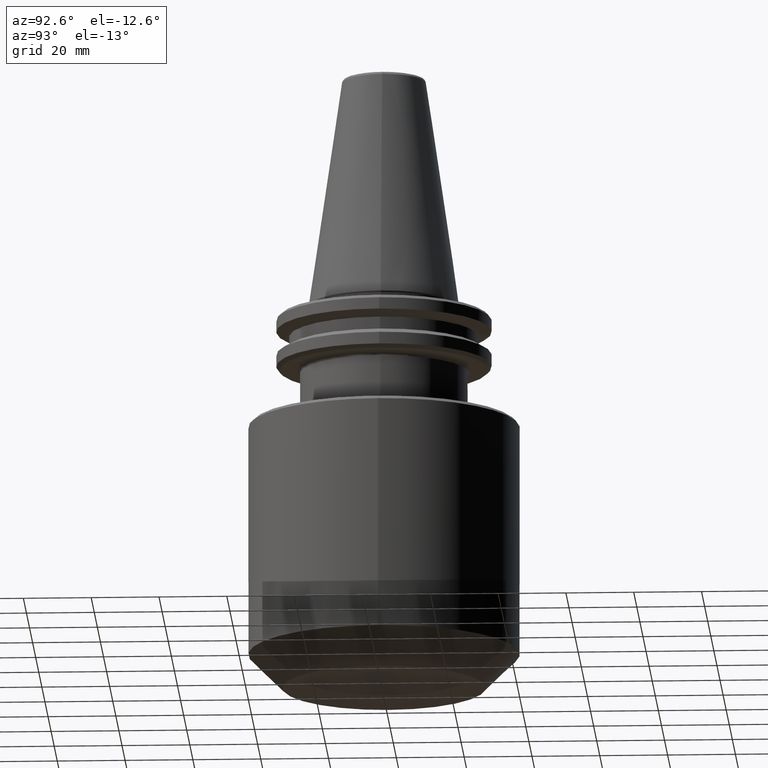
[diagram: clean part render]
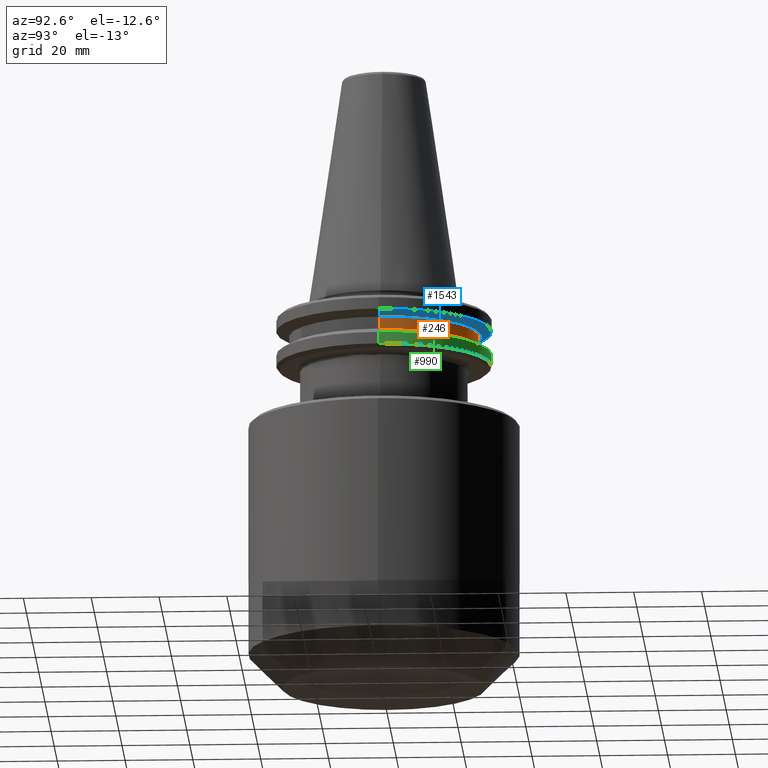
[diagram: same view with three faces highlighted in distinct colors, each labeled with its STEP entity id]
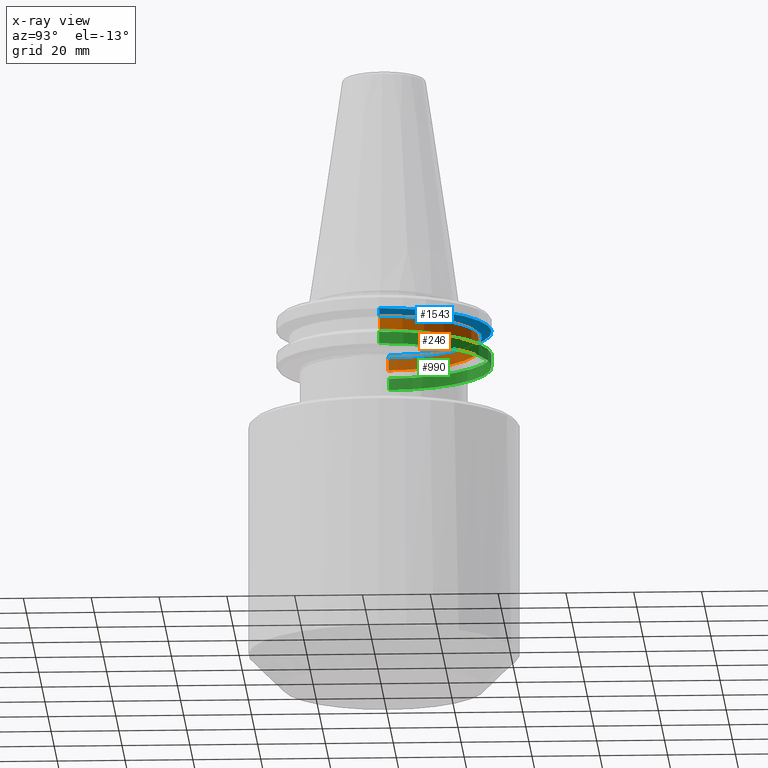
[diagram: x-ray of the same camera — body ghosted, the three highlighted faces saturated]
A machine part, auxiliary view with three faces highlighted in distinct colors.
The next image is the same camera in x-ray (body ghosted, the three faces saturated) — at least one of them is partly hidden behind the body in this view.
Their STEP definitions:

[orange] entity #246 — the highlighted cylindrical surface (partial cylindrical patch) has radius 28 mm, axis along (0, 0, 1).
#33 = VERTEX_POINT ( 'NONE', #1106 ) ;
#75 = CIRCLE ( 'NONE', #342, 28.00000000000000000 ) ;
#153 = ORIENTED_EDGE ( 'NONE', *, *, #1945, .F. ) ;
#175 = VERTEX_POINT ( 'NONE', #1271 ) ;
#176 = DIRECTION ( 'NONE',  ( 0.0000000000000000000, 0.0000000000000000000, 1.000000000000000000 ) ) ;
#179 = CIRCLE ( 'NONE', #319, 28.00000000000000000 ) ;
#219 = CARTESIAN_POINT ( 'NONE',  ( 0.0000000000000000000, 0.0000000000000000000, -13.00000000000001100 ) ) ;
#237 = VERTEX_POINT ( 'NONE', #1134 ) ;
#246 = ADVANCED_FACE ( 'NONE', ( #1968 ), #1190, .T. ) ;
#253 = AXIS2_PLACEMENT_3D ( 'NONE', #1480, #1328, #1296 ) ;
#264 = LINE ( 'NONE', #560, #1828 ) ;
#267 = DIRECTION ( 'NONE',  ( 1.000000000000000000, 0.0000000000000000000, 0.0000000000000000000 ) ) ;
#319 = AXIS2_PLACEMENT_3D ( 'NONE', #428, #1560, #1160 ) ;
#342 = AXIS2_PLACEMENT_3D ( 'NONE', #219, #1117, #267 ) ;
#391 = VECTOR ( 'NONE', #176, 1000.000000000000000 ) ;
#428 = CARTESIAN_POINT ( 'NONE',  ( 0.0000000000000000000, 0.0000000000000000000, -9.199999999999999300 ) ) ;
#538 = EDGE_CURVE ( 'NONE', #175, #237, #264, .T. ) ;
#548 = DIRECTION ( 'NONE',  ( 0.0000000000000000000, 0.0000000000000000000, 1.000000000000000000 ) ) ;
#560 = CARTESIAN_POINT ( 'NONE',  ( -28.00000000000000000, 3.429011037612589300E-015, 113.5216080541959500 ) ) ;
#679 = CARTESIAN_POINT ( 'NONE',  ( 28.00000000000000000, 0.0000000000000000000, 113.5216080541959500 ) ) ;
#942 = CARTESIAN_POINT ( 'NONE',  ( 28.00000000000000000, 0.0000000000000000000, -9.199999999999999300 ) ) ;
#1106 = CARTESIAN_POINT ( 'NONE',  ( 28.00000000000000000, 0.0000000000000000000, -13.00000000000001100 ) ) ;
#1117 = DIRECTION ( 'NONE',  ( 0.0000000000000000000, 0.0000000000000000000, 1.000000000000000000 ) ) ;
#1134 = CARTESIAN_POINT ( 'NONE',  ( -28.00000000000000000, 3.429011037612589300E-015, -9.199999999999999300 ) ) ;
#1144 = EDGE_CURVE ( 'NONE', #33, #175, #75, .T. ) ;
#1156 = EDGE_CURVE ( 'NONE', #237, #1255, #179, .T. ) ;
#1160 = DIRECTION ( 'NONE',  ( 1.000000000000000000, 0.0000000000000000000, 0.0000000000000000000 ) ) ;
#1190 = CYLINDRICAL_SURFACE ( 'NONE', #253, 28.00000000000000000 ) ;
#1255 = VERTEX_POINT ( 'NONE', #942 ) ;
#1271 = CARTESIAN_POINT ( 'NONE',  ( -28.00000000000000000, 3.429011037612589300E-015, -13.00000000000001100 ) ) ;
#1296 = DIRECTION ( 'NONE',  ( 1.000000000000000000, 0.0000000000000000000, 0.0000000000000000000 ) ) ;
#1328 = DIRECTION ( 'NONE',  ( 0.0000000000000000000, 0.0000000000000000000, 1.000000000000000000 ) ) ;
#1347 = ORIENTED_EDGE ( 'NONE', *, *, #538, .T. ) ;
#1480 = CARTESIAN_POINT ( 'NONE',  ( 0.0000000000000000000, 0.0000000000000000000, 113.5216080541959500 ) ) ;
#1560 = DIRECTION ( 'NONE',  ( -0.0000000000000000000, -0.0000000000000000000, -1.000000000000000000 ) ) ;
#1755 = EDGE_LOOP ( 'NONE', ( #1764, #1347, #1885, #153 ) ) ;
#1764 = ORIENTED_EDGE ( 'NONE', *, *, #1144, .T. ) ;
#1828 = VECTOR ( 'NONE', #548, 1000.000000000000000 ) ;
#1885 = ORIENTED_EDGE ( 'NONE', *, *, #1156, .T. ) ;
#1945 = EDGE_CURVE ( 'NONE', #33, #1255, #1963, .T. ) ;
#1963 = LINE ( 'NONE', #679, #391 ) ;
#1968 = FACE_OUTER_BOUND ( 'NONE', #1755, .T. ) ;

[blue] entity #1543 — the highlighted conical surface has half-angle 60 deg.
#18 = AXIS2_PLACEMENT_3D ( 'NONE', #413, #1473, #1714 ) ;
#170 = VECTOR ( 'NONE', #1937, 1000.000000000000000 ) ;
#171 = AXIS2_PLACEMENT_3D ( 'NONE', #1836, #1882, #1798 ) ;
#406 = VERTEX_POINT ( 'NONE', #663 ) ;
#413 = CARTESIAN_POINT ( 'NONE',  ( 0.0000000000000000000, 0.0000000000000000000, -9.199999999999999300 ) ) ;
#474 = ORIENTED_EDGE ( 'NONE', *, *, #1754, .F. ) ;
#530 = DIRECTION ( 'NONE',  ( -0.8660254037844390400, 1.060575238724907400E-016, 0.4999999999999993300 ) ) ;
#610 = LINE ( 'NONE', #1006, #977 ) ;
#633 = EDGE_LOOP ( 'NONE', ( #1693, #1621, #868, #474 ) ) ;
#657 = CIRCLE ( 'NONE', #738, 31.75000000000000000 ) ;
#663 = CARTESIAN_POINT ( 'NONE',  ( -28.94089653438086500, 3.716245608910637900E-015, -9.199999999999999300 ) ) ;
#738 = AXIS2_PLACEMENT_3D ( 'NONE', #1934, #1861, #1864 ) ;
#868 = ORIENTED_EDGE ( 'NONE', *, *, #1569, .T. ) ;
#977 = VECTOR ( 'NONE', #530, 1000.000000000000000 ) ;
#988 = CARTESIAN_POINT ( 'NONE',  ( 31.75000000000000000, 0.0000000000000000000, -7.578163357943284800 ) ) ;
#1006 = CARTESIAN_POINT ( 'NONE',  ( -31.75000000000000000, 3.888253587292846500E-015, -7.578163357943284800 ) ) ;
#1046 = FACE_OUTER_BOUND ( 'NONE', #633, .T. ) ;
#1364 = LINE ( 'NONE', #1825, #170 ) ;
#1416 = VERTEX_POINT ( 'NONE', #988 ) ;
#1473 = DIRECTION ( 'NONE',  ( 0.0000000000000000000, -0.0000000000000000000, 1.000000000000000000 ) ) ;
#1543 = ADVANCED_FACE ( 'NONE', ( #1046 ), #1837, .T. ) ;
#1569 = EDGE_CURVE ( 'NONE', #1697, #1416, #657, .T. ) ;
#1620 = VERTEX_POINT ( 'NONE', #1794 ) ;
#1621 = ORIENTED_EDGE ( 'NONE', *, *, #1974, .T. ) ;
#1693 = ORIENTED_EDGE ( 'NONE', *, *, #1961, .T. ) ;
#1697 = VERTEX_POINT ( 'NONE', #1976 ) ;
#1714 = DIRECTION ( 'NONE',  ( 1.000000000000000000, 0.0000000000000000000, 0.0000000000000000000 ) ) ;
#1754 = EDGE_CURVE ( 'NONE', #1620, #1416, #1364, .T. ) ;
#1794 = CARTESIAN_POINT ( 'NONE',  ( 28.94089653438086500, 0.0000000000000000000, -9.199999999999999300 ) ) ;
#1798 = DIRECTION ( 'NONE',  ( 1.000000000000000000, 0.0000000000000000000, 0.0000000000000000000 ) ) ;
#1825 = CARTESIAN_POINT ( 'NONE',  ( 31.75000000000000000, 0.0000000000000000000, -7.578163357943284800 ) ) ;
#1826 = CIRCLE ( 'NONE', #18, 28.94089653438086500 ) ;
#1836 = CARTESIAN_POINT ( 'NONE',  ( 0.0000000000000000000, 0.0000000000000000000, -7.578163357943284800 ) ) ;
#1837 = CONICAL_SURFACE ( 'NONE', #171, 31.75000000000000000, 1.047197551196598500 ) ;
#1861 = DIRECTION ( 'NONE',  ( -0.0000000000000000000, -0.0000000000000000000, -1.000000000000000000 ) ) ;
#1864 = DIRECTION ( 'NONE',  ( 1.000000000000000000, 0.0000000000000000000, -5.463695987328526400E-017 ) ) ;
#1882 = DIRECTION ( 'NONE',  ( 0.0000000000000000000, -0.0000000000000000000, 1.000000000000000000 ) ) ;
#1934 = CARTESIAN_POINT ( 'NONE',  ( 0.0000000000000000000, 0.0000000000000000000, -7.578163357943284800 ) ) ;
#1937 = DIRECTION ( 'NONE',  ( 0.8660254037844390400, 0.0000000000000000000, 0.4999999999999993300 ) ) ;
#1961 = EDGE_CURVE ( 'NONE', #1620, #406, #1826, .T. ) ;
#1974 = EDGE_CURVE ( 'NONE', #406, #1697, #610, .T. ) ;
#1976 = CARTESIAN_POINT ( 'NONE',  ( -31.75000000000000000, 3.888253587292846500E-015, -7.578163357943284800 ) ) ;

[green] entity #990 — the highlighted cylindrical surface (partial cylindrical patch) has radius 31.75 mm, axis along (0, 0, 1).
#11 = AXIS2_PLACEMENT_3D ( 'NONE', #15, #31, #25 ) ;
#15 = CARTESIAN_POINT ( 'NONE',  ( 0.0000000000000000000, 0.0000000000000000000, 113.5216080541959500 ) ) ;
#25 = DIRECTION ( 'NONE',  ( 1.000000000000000000, 0.0000000000000000000, 0.0000000000000000000 ) ) ;
#31 = DIRECTION ( 'NONE',  ( 0.0000000000000000000, 0.0000000000000000000, 1.000000000000000000 ) ) ;
#71 = VERTEX_POINT ( 'NONE', #1099 ) ;
#87 = CIRCLE ( 'NONE', #527, 31.75000000000005700 ) ;
#191 = EDGE_LOOP ( 'NONE', ( #321, #1520, #645, #1090 ) ) ;
#321 = ORIENTED_EDGE ( 'NONE', *, *, #437, .T. ) ;
#346 = CYLINDRICAL_SURFACE ( 'NONE', #11, 31.75000000000000000 ) ;
#365 = VECTOR ( 'NONE', #604, 1000.000000000000000 ) ;
#415 = LINE ( 'NONE', #603, #365 ) ;
#437 = EDGE_CURVE ( 'NONE', #71, #1496, #87, .T. ) ;
#459 = CARTESIAN_POINT ( 'NONE',  ( -31.74999999999924300, 3.888253587292755000E-015, -18.10000000000078300 ) ) ;
#464 = EDGE_CURVE ( 'NONE', #1496, #1870, #415, .T. ) ;
#493 = DIRECTION ( 'NONE',  ( -1.000000000000000000, 0.0000000000000000000, -5.463695987328526400E-017 ) ) ;
#496 = DIRECTION ( 'NONE',  ( -0.0000000000000000000, -0.0000000000000000000, 1.000000000000000000 ) ) ;
#498 = CARTESIAN_POINT ( 'NONE',  ( 0.0000000000000000000, 0.0000000000000000000, -14.62183664205671200 ) ) ;
#499 = AXIS2_PLACEMENT_3D ( 'NONE', #498, #496, #493 ) ;
#527 = AXIS2_PLACEMENT_3D ( 'NONE', #612, #611, #609 ) ;
#542 = CARTESIAN_POINT ( 'NONE',  ( 31.75000000000000000, 0.0000000000000000000, 113.5216080541959500 ) ) ;
#543 = DIRECTION ( 'NONE',  ( 0.0000000000000000000, 0.0000000000000000000, 1.000000000000000000 ) ) ;
#567 = EDGE_CURVE ( 'NONE', #71, #1538, #651, .T. ) ;
#600 = EDGE_CURVE ( 'NONE', #1538, #1870, #1440, .T. ) ;
#603 = CARTESIAN_POINT ( 'NONE',  ( -31.75000000000000000, 3.888253587292846500E-015, 113.5216080541959500 ) ) ;
#604 = DIRECTION ( 'NONE',  ( 0.0000000000000000000, 0.0000000000000000000, 1.000000000000000000 ) ) ;
#609 = DIRECTION ( 'NONE',  ( 1.000000000000000000, 0.0000000000000000000, 0.0000000000000000000 ) ) ;
#611 = DIRECTION ( 'NONE',  ( -0.0000000000000000000, -0.0000000000000000000, 1.000000000000000000 ) ) ;
#612 = CARTESIAN_POINT ( 'NONE',  ( 0.0000000000000000000, 0.0000000000000000000, -18.10000000000078300 ) ) ;
#645 = ORIENTED_EDGE ( 'NONE', *, *, #600, .F. ) ;
#651 = LINE ( 'NONE', #542, #1483 ) ;
#990 = ADVANCED_FACE ( 'NONE', ( #1231 ), #346, .T. ) ;
#1090 = ORIENTED_EDGE ( 'NONE', *, *, #567, .F. ) ;
#1099 = CARTESIAN_POINT ( 'NONE',  ( 31.74999999999924300, 0.0000000000000000000, -18.10000000000078300 ) ) ;
#1231 = FACE_OUTER_BOUND ( 'NONE', #191, .T. ) ;
#1440 = CIRCLE ( 'NONE', #499, 31.75000000000000000 ) ;
#1483 = VECTOR ( 'NONE', #543, 1000.000000000000000 ) ;
#1496 = VERTEX_POINT ( 'NONE', #459 ) ;
#1520 = ORIENTED_EDGE ( 'NONE', *, *, #464, .T. ) ;
#1538 = VERTEX_POINT ( 'NONE', #1966 ) ;
#1715 = CARTESIAN_POINT ( 'NONE',  ( -31.75000000000000000, 0.0000000000000000000, -14.62183664205671200 ) ) ;
#1870 = VERTEX_POINT ( 'NONE', #1715 ) ;
#1966 = CARTESIAN_POINT ( 'NONE',  ( 31.75000000000000000, 3.888253587292846500E-015, -14.62183664205671200 ) ) ;